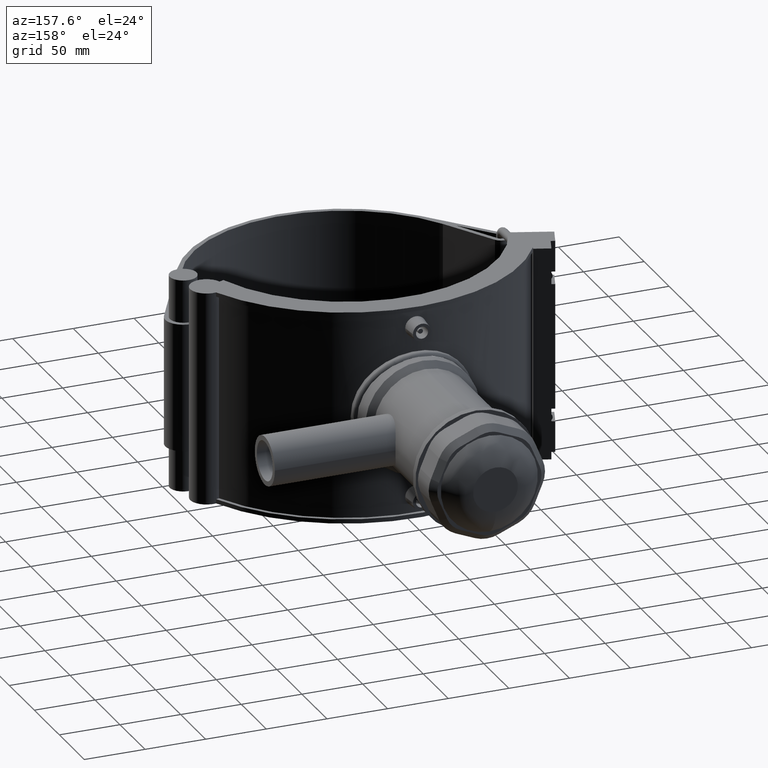
[diagram: clean part render]
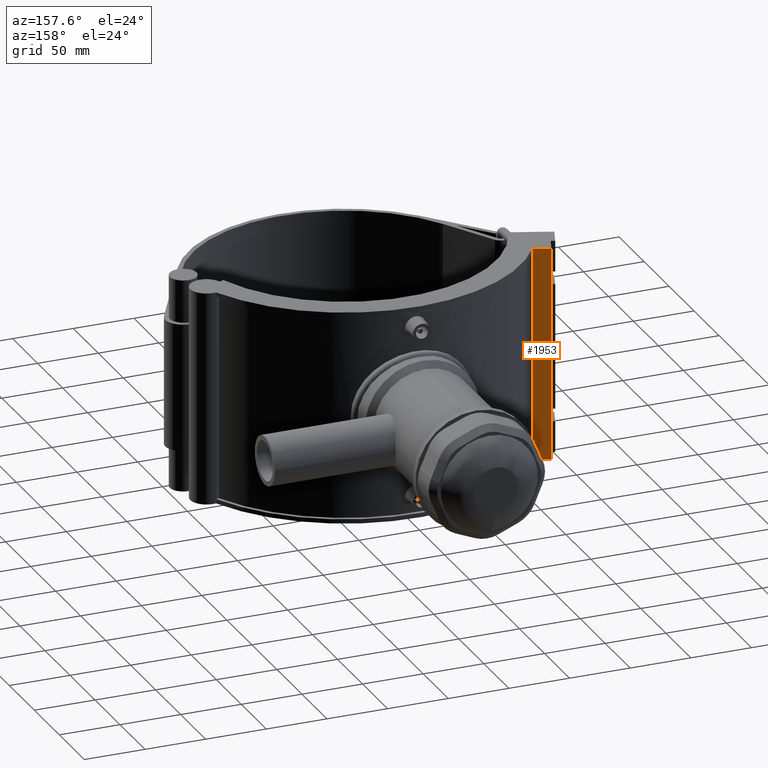
[diagram: same view with one face highlighted and labeled with its STEP entity id]
A machine part, auxiliary view. The second image highlights one B-rep face of the part: STEP entity #1953.
In plain terms, the highlighted planar face has unit normal (0.342, 0.9397, 0).
Its self-contained STEP definition (entity closure, byte-faithful):
#169=LINE('',#3544,#330);
#176=LINE('',#3558,#337);
#178=LINE('',#3561,#339);
#179=LINE('',#3562,#340);
#330=VECTOR('',#2628,176.);
#337=VECTOR('',#2641,176.);
#339=VECTOR('',#2645,14.);
#340=VECTOR('',#2646,14.);
#532=FACE_OUTER_BOUND('',#674,.T.);
#674=EDGE_LOOP('',(#1647,#1648,#1649,#1650));
#964=VERTEX_POINT('',#3541);
#965=VERTEX_POINT('',#3543);
#968=VERTEX_POINT('',#3555);
#969=VERTEX_POINT('',#3557);
#1205=EDGE_CURVE('',#964,#965,#169,.T.);
#1212=EDGE_CURVE('',#969,#968,#176,.T.);
#1214=EDGE_CURVE('',#968,#965,#178,.T.);
#1215=EDGE_CURVE('',#969,#964,#179,.T.);
#1647=ORIENTED_EDGE('',*,*,#1214,.T.);
#1648=ORIENTED_EDGE('',*,*,#1205,.F.);
#1649=ORIENTED_EDGE('',*,*,#1215,.F.);
#1650=ORIENTED_EDGE('',*,*,#1212,.T.);
#1853=PLANE('',#2143);
#1953=ADVANCED_FACE('',(#532),#1853,.T.);
#2143=AXIS2_PLACEMENT_3D('',#3560,#2643,#2644);
#2628=DIRECTION('',(0.,0.,1.));
#2641=DIRECTION('',(0.,0.,1.));
#2643=DIRECTION('center_axis',(0.342020143325668,0.939692620785909,0.));
#2644=DIRECTION('ref_axis',(-0.939692620785909,0.342020143325668,0.));
#2645=DIRECTION('',(0.939692620785909,-0.342020143325668,0.));
#2646=DIRECTION('',(0.939692620785909,-0.342020143325668,0.));
#3541=CARTESIAN_POINT('',(-123.132563947233,78.3381879786639,-88.));
#3543=CARTESIAN_POINT('',(-123.132563947233,78.3381879786639,88.));
#3544=CARTESIAN_POINT('',(-123.132563947233,78.3381879786639,-88.));
#3555=CARTESIAN_POINT('',(-136.288260638236,83.1264699852232,88.));
#3557=CARTESIAN_POINT('',(-136.288260638236,83.1264699852232,-88.));
#3558=CARTESIAN_POINT('',(-136.288260638236,83.1264699852232,-88.));
#3560=CARTESIAN_POINT('Origin',(-123.132563947233,78.3381879786639,-88.));
#3561=CARTESIAN_POINT('',(-124.093421040158,78.6879113598719,88.));
#3562=CARTESIAN_POINT('',(-136.288260638236,83.1264699852232,-88.));